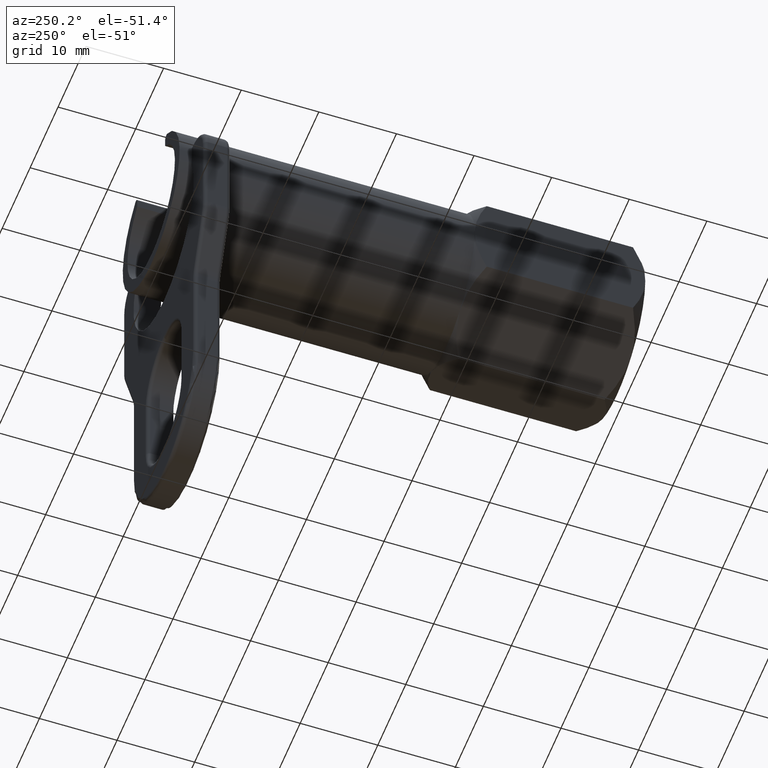
[diagram: clean part render]
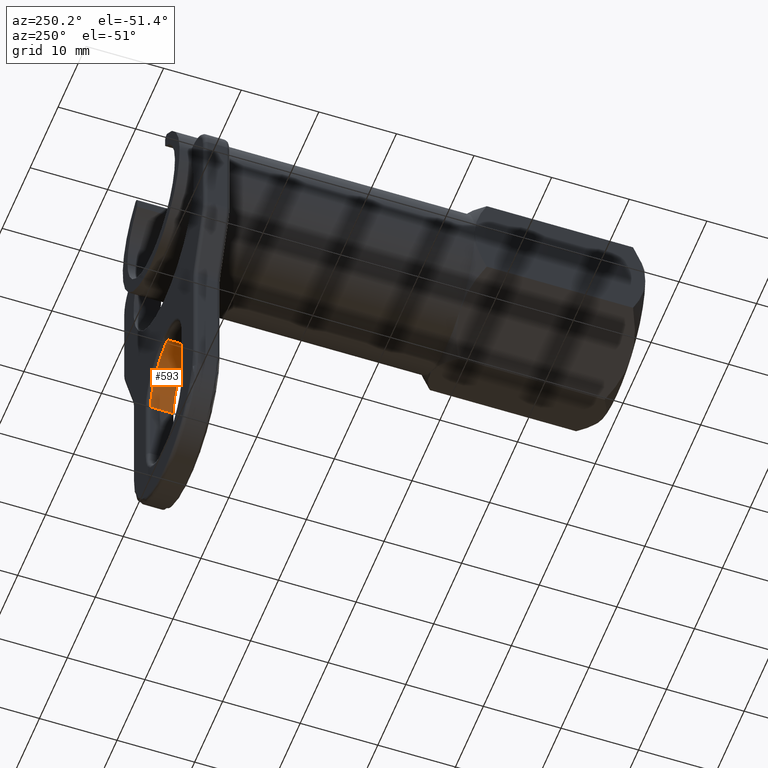
[diagram: same view with one face highlighted and labeled with its STEP entity id]
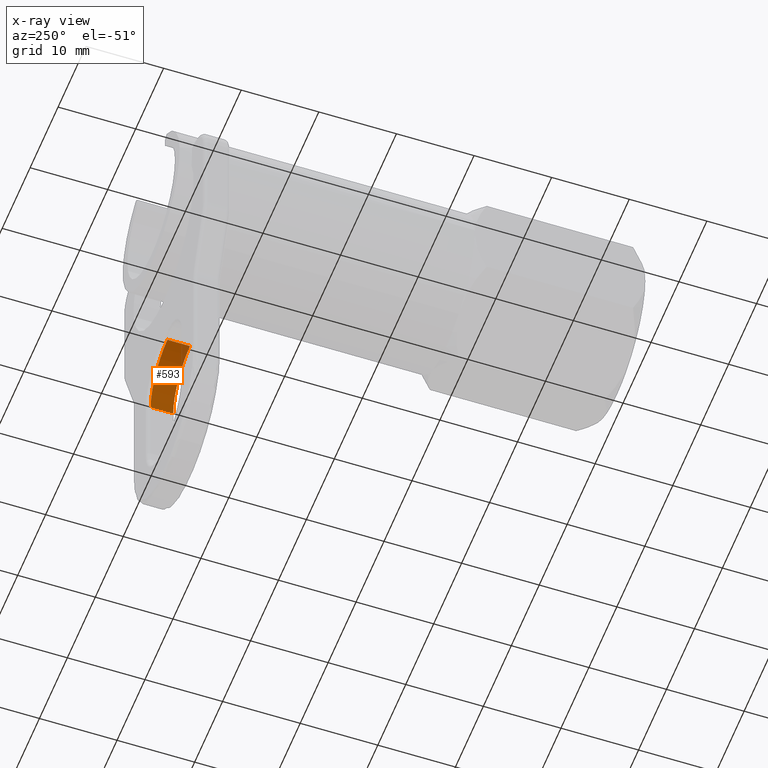
[diagram: x-ray of the same camera — body ghosted, the highlighted face saturated]
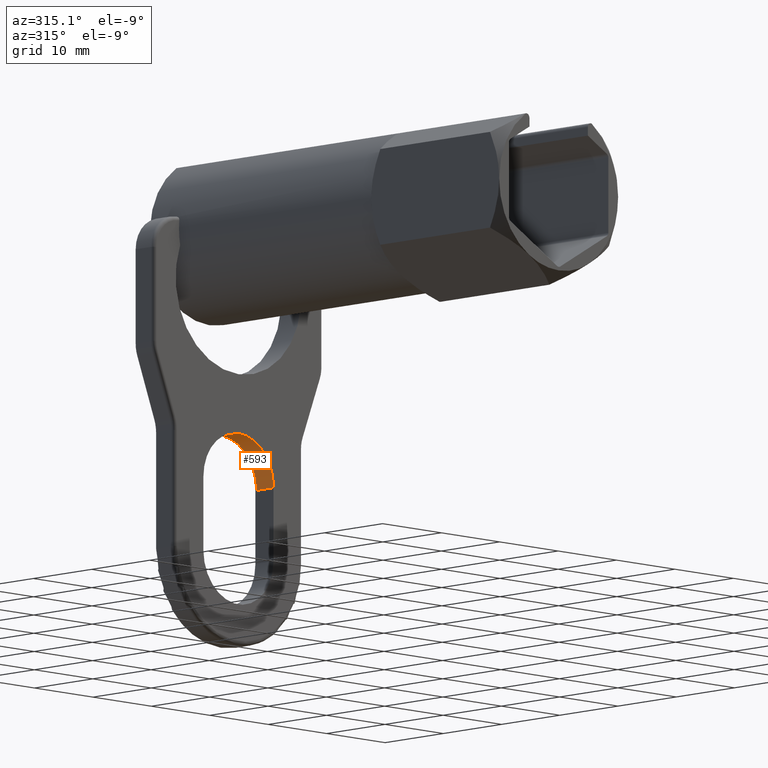
[diagram: same view with one face highlighted and labeled with its STEP entity id]
A machine part, auxiliary view. The second image highlights one B-rep face of the part: STEP entity #593.
The next image is the same camera in x-ray: the body ghosted, the highlighted face saturated — about 6% of this face is hidden behind the body in this view.
A second angle (auxiliary view) of the same face is appended — the face is thin or edge-on in the first view.
In plain terms, the highlighted cylindrical surface (partial cylindrical patch) has radius 6 mm, axis along (0, 1, 0).
Its self-contained STEP definition (entity closure, byte-faithful):
#533 = EDGE_LOOP ( 'NONE', ( #545, #534, #535, #597 ) ) ;
#534 = ORIENTED_EDGE ( 'NONE', *, *, #544, .T. ) ;
#535 = ORIENTED_EDGE ( 'NONE', *, *, #600, .T. ) ;
#543 = VERTEX_POINT ( 'NONE', #1826 ) ;
#544 = EDGE_CURVE ( 'NONE', #543, #564, #1825, .T. ) ;
#545 = ORIENTED_EDGE ( 'NONE', *, *, #546, .F. ) ;
#546 = EDGE_CURVE ( 'NONE', #543, #547, #1821, .T. ) ;
#547 = VERTEX_POINT ( 'NONE', #1816 ) ;
#564 = VERTEX_POINT ( 'NONE', #1837 ) ;
#593 = ADVANCED_FACE ( 'NONE', ( #1910 ), #1909, .F. ) ;
#595 = EDGE_CURVE ( 'NONE', #547, #601, #1902, .T. ) ;
#597 = ORIENTED_EDGE ( 'NONE', *, *, #595, .F. ) ;
#600 = EDGE_CURVE ( 'NONE', #564, #601, #1953, .T. ) ;
#601 = VERTEX_POINT ( 'NONE', #1948 ) ;
#1816 = CARTESIAN_POINT ( 'NONE',  ( 6.000000000000000000, 55.00000000000000000, -30.00000000000000000 ) ) ;
#1817 = DIRECTION ( 'NONE',  ( 0.0000000000000000000, 0.0000000000000000000, 1.000000000000000000 ) ) ;
#1818 = DIRECTION ( 'NONE',  ( 0.0000000000000000000, 1.000000000000000000, 0.0000000000000000000 ) ) ;
#1819 = CARTESIAN_POINT ( 'NONE',  ( 0.0000000000000000000, 55.00000000000000000, -30.00000000000000000 ) ) ;
#1820 = AXIS2_PLACEMENT_3D ( 'NONE', #1819, #1818, #1817 ) ;
#1821 = CIRCLE ( 'NONE', #1820, 5.999999999999998200 ) ;
#1822 = DIRECTION ( 'NONE',  ( 0.0000000000000000000, 1.000000000000000000, 0.0000000000000000000 ) ) ;
#1823 = VECTOR ( 'NONE', #1822, 1000.000000000000000 ) ;
#1824 = CARTESIAN_POINT ( 'NONE',  ( 0.0000000000000000000, -0.001000000000001000100, -24.00000000000000000 ) ) ;
#1825 = LINE ( 'NONE', #1824, #1823 ) ;
#1826 = CARTESIAN_POINT ( 'NONE',  ( 0.0000000000000000000, 55.00000000000000000, -24.00000000000000000 ) ) ;
#1837 = CARTESIAN_POINT ( 'NONE',  ( 0.0000000000000000000, 57.89999999999999900, -24.00000000000000000 ) ) ;
#1897 = CARTESIAN_POINT ( 'NONE',  ( 6.000000000000000000, -0.001000000000001000100, -30.00000000000000000 ) ) ;
#1902 = LINE ( 'NONE', #1897, #1956 ) ;
#1904 = DIRECTION ( 'NONE',  ( 0.0000000000000000000, 0.0000000000000000000, 1.000000000000000000 ) ) ;
#1905 = DIRECTION ( 'NONE',  ( 0.0000000000000000000, 1.000000000000000000, 0.0000000000000000000 ) ) ;
#1906 = CARTESIAN_POINT ( 'NONE',  ( 0.0000000000000000000, -0.001000000000001000100, -30.00000000000000000 ) ) ;
#1907 = AXIS2_PLACEMENT_3D ( 'NONE', #1906, #1905, #1904 ) ;
#1909 = CYLINDRICAL_SURFACE ( 'NONE', #1907, 5.999999999999998200 ) ;
#1910 = FACE_OUTER_BOUND ( 'NONE', #533, .T. ) ;
#1948 = CARTESIAN_POINT ( 'NONE',  ( 6.000000000000000000, 57.89999999999999900, -30.00000000000000000 ) ) ;
#1949 = DIRECTION ( 'NONE',  ( 0.0000000000000000000, 0.0000000000000000000, 1.000000000000000000 ) ) ;
#1950 = DIRECTION ( 'NONE',  ( 0.0000000000000000000, 1.000000000000000000, 0.0000000000000000000 ) ) ;
#1951 = CARTESIAN_POINT ( 'NONE',  ( 0.0000000000000000000, 57.89999999999999900, -30.00000000000000000 ) ) ;
#1952 = AXIS2_PLACEMENT_3D ( 'NONE', #1951, #1950, #1949 ) ;
#1953 = CIRCLE ( 'NONE', #1952, 5.999999999999998200 ) ;
#1955 = DIRECTION ( 'NONE',  ( 0.0000000000000000000, 1.000000000000000000, 0.0000000000000000000 ) ) ;
#1956 = VECTOR ( 'NONE', #1955, 1000.000000000000000 ) ;